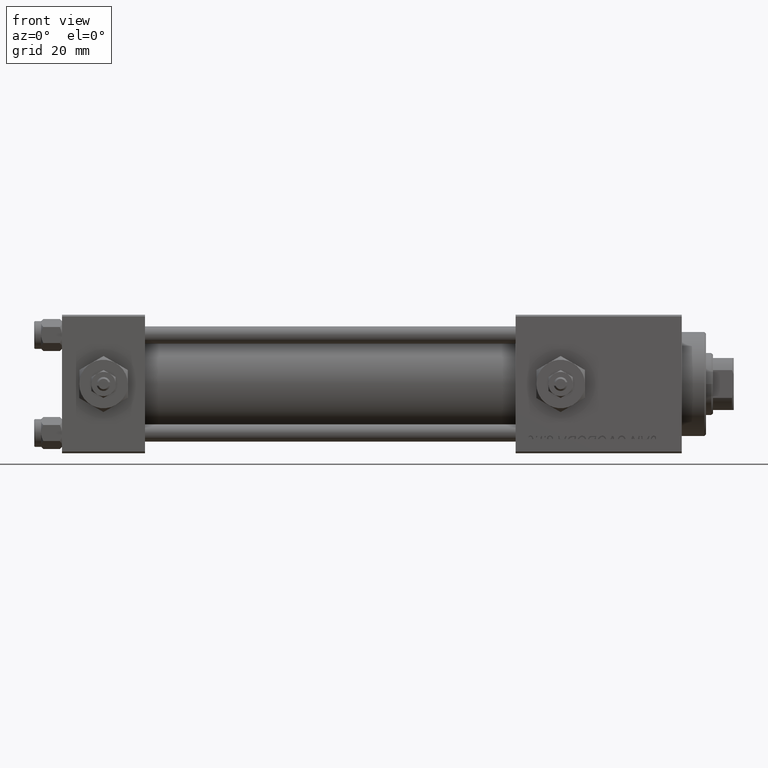
[diagram: clean part render]
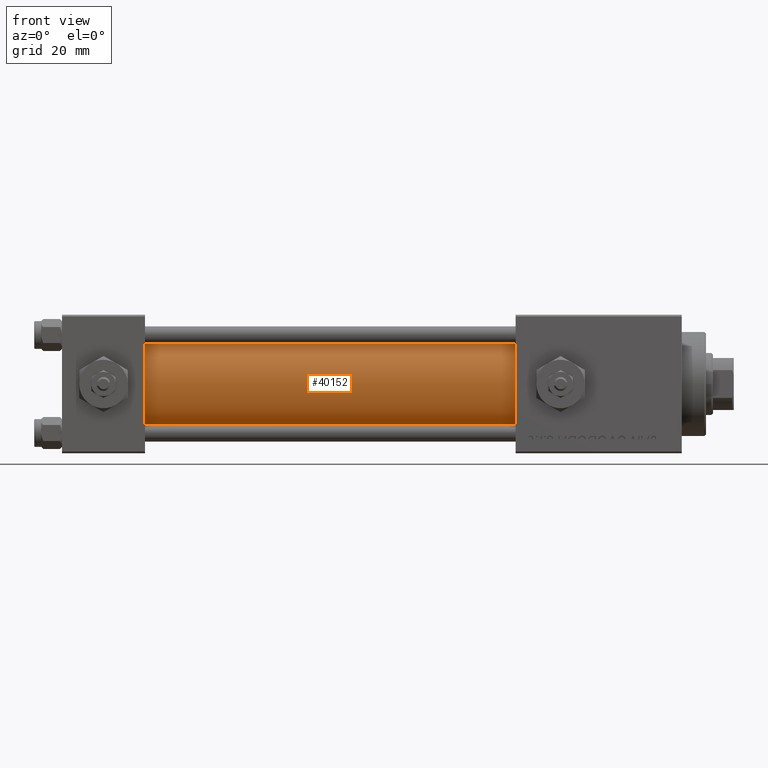
[diagram: same view with one face highlighted and labeled with its STEP entity id]
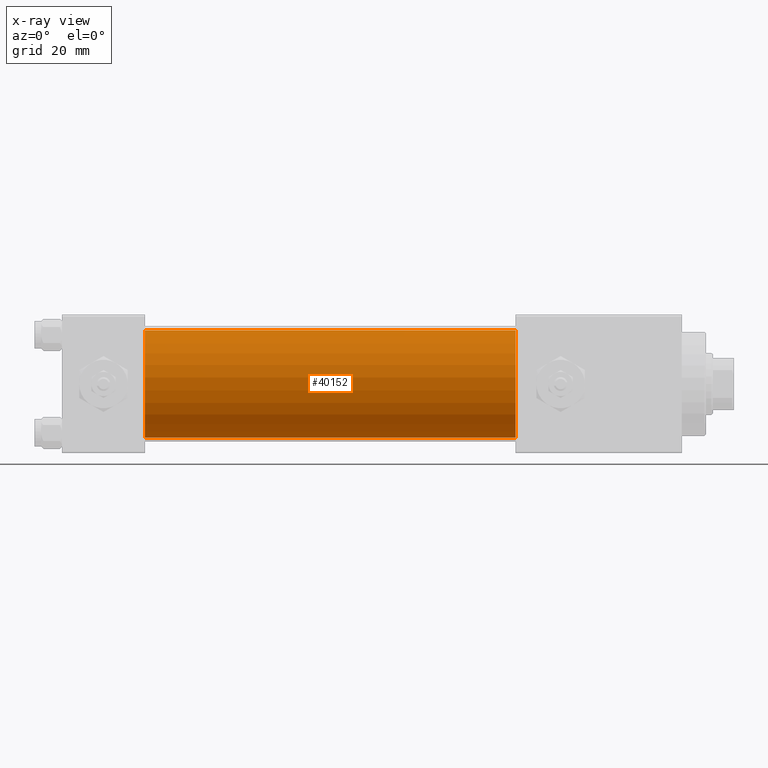
[diagram: x-ray of the same camera — body ghosted, the highlighted face saturated]
A machine part, front view. The second image highlights one B-rep face of the part: STEP entity #40152.
The next image is the same camera in x-ray: the body ghosted, the highlighted face saturated — about 0% of this face is hidden behind the body in this view.
In plain terms, the highlighted cylindrical surface (partial cylindrical patch) has radius 15.5 mm, axis along (-1, -0, -0).
Its self-contained STEP definition (entity closure, byte-faithful):
#154 = CARTESIAN_POINT ( 'NONE',  ( 23.99999999999999289, -2.602085213965210642E-15, 15.50000000000000000 ) ) ;
#420 = CARTESIAN_POINT ( 'NONE',  ( 131.0000000000000000, -7.038826752868131828E-16, -15.50000000000000000 ) ) ;
#445 = CARTESIAN_POINT ( 'NONE',  ( 131.0000000000000000, -2.602085213965210642E-15, 0.000000000000000000 ) ) ;
#581 = CIRCLE ( 'NONE', #12505, 15.50000000000000000 ) ;
#833 = EDGE_CURVE ( 'NONE', #896, #13920, #581, .T. ) ;
#896 = VERTEX_POINT ( 'NONE', #154 ) ;
#4281 = FACE_OUTER_BOUND ( 'NONE', #48942, .T. ) ;
#7468 = CARTESIAN_POINT ( 'NONE',  ( 131.0000000000000000, -2.602085213965210642E-15, 0.000000000000000000 ) ) ;
#8433 = CARTESIAN_POINT ( 'NONE',  ( 131.0000000000000000, -7.038826752868131828E-16, -15.50000000000000000 ) ) ;
#9065 = CARTESIAN_POINT ( 'NONE',  ( 23.99999999999999289, -7.038826752868131828E-16, -15.50000000000000000 ) ) ;
#12386 = LINE ( 'NONE', #8433, #40349 ) ;
#12505 = AXIS2_PLACEMENT_3D ( 'NONE', #51407, #23941, #35297 ) ;
#13920 = VERTEX_POINT ( 'NONE', #9065 ) ;
#14246 = AXIS2_PLACEMENT_3D ( 'NONE', #445, #48793, #37424 ) ;
#15526 = ORIENTED_EDGE ( 'NONE', *, *, #39128, .F. ) ;
#16715 = AXIS2_PLACEMENT_3D ( 'NONE', #7468, #24370, #23595 ) ;
#17632 = CIRCLE ( 'NONE', #14246, 15.50000000000000000 ) ;
#19245 = ORIENTED_EDGE ( 'NONE', *, *, #833, .T. ) ;
#23595 = DIRECTION ( 'NONE',  ( 0.000000000000000000, 0.000000000000000000, 1.000000000000000000 ) ) ;
#23941 = DIRECTION ( 'NONE',  ( 1.000000000000000000, 0.000000000000000000, 0.000000000000000000 ) ) ;
#24113 = CYLINDRICAL_SURFACE ( 'NONE', #16715, 15.50000000000000000 ) ;
#24370 = DIRECTION ( 'NONE',  ( -1.000000000000000000, -0.000000000000000000, -0.000000000000000000 ) ) ;
#26963 = DIRECTION ( 'NONE',  ( -1.000000000000000000, -0.000000000000000000, -0.000000000000000000 ) ) ;
#28896 = ORIENTED_EDGE ( 'NONE', *, *, #36858, .T. ) ;
#31483 = VERTEX_POINT ( 'NONE', #420 ) ;
#31925 = ORIENTED_EDGE ( 'NONE', *, *, #40776, .F. ) ;
#35297 = DIRECTION ( 'NONE',  ( 0.000000000000000000, 0.000000000000000000, 1.000000000000000000 ) ) ;
#35537 = CARTESIAN_POINT ( 'NONE',  ( 131.0000000000000000, -2.602085213965210642E-15, 15.50000000000000000 ) ) ;
#36858 = EDGE_CURVE ( 'NONE', #38888, #896, #42811, .T. ) ;
#37424 = DIRECTION ( 'NONE',  ( 0.000000000000000000, 0.000000000000000000, -1.000000000000000000 ) ) ;
#38580 = VECTOR ( 'NONE', #26963, 1000.000000000000000 ) ;
#38888 = VERTEX_POINT ( 'NONE', #35537 ) ;
#39128 = EDGE_CURVE ( 'NONE', #31483, #13920, #12386, .T. ) ;
#39903 = CARTESIAN_POINT ( 'NONE',  ( 131.0000000000000000, -2.602085213965210642E-15, 15.50000000000000000 ) ) ;
#40152 = ADVANCED_FACE ( 'NONE', ( #4281 ), #24113, .T. ) ;
#40349 = VECTOR ( 'NONE', #44630, 1000.000000000000000 ) ;
#40776 = EDGE_CURVE ( 'NONE', #38888, #31483, #17632, .T. ) ;
#42811 = LINE ( 'NONE', #39903, #38580 ) ;
#44630 = DIRECTION ( 'NONE',  ( -1.000000000000000000, -0.000000000000000000, -0.000000000000000000 ) ) ;
#48793 = DIRECTION ( 'NONE',  ( 1.000000000000000000, 0.000000000000000000, 0.000000000000000000 ) ) ;
#48942 = EDGE_LOOP ( 'NONE', ( #15526, #31925, #28896, #19245 ) ) ;
#51407 = CARTESIAN_POINT ( 'NONE',  ( 23.99999999999999289, -2.602085213965210642E-15, 0.000000000000000000 ) ) ;